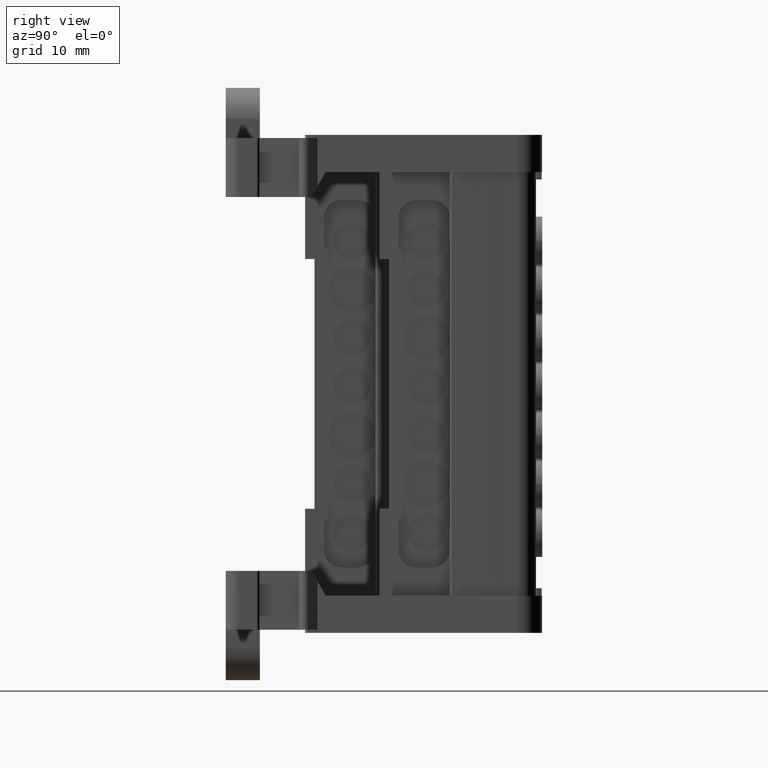
[diagram: clean part render]
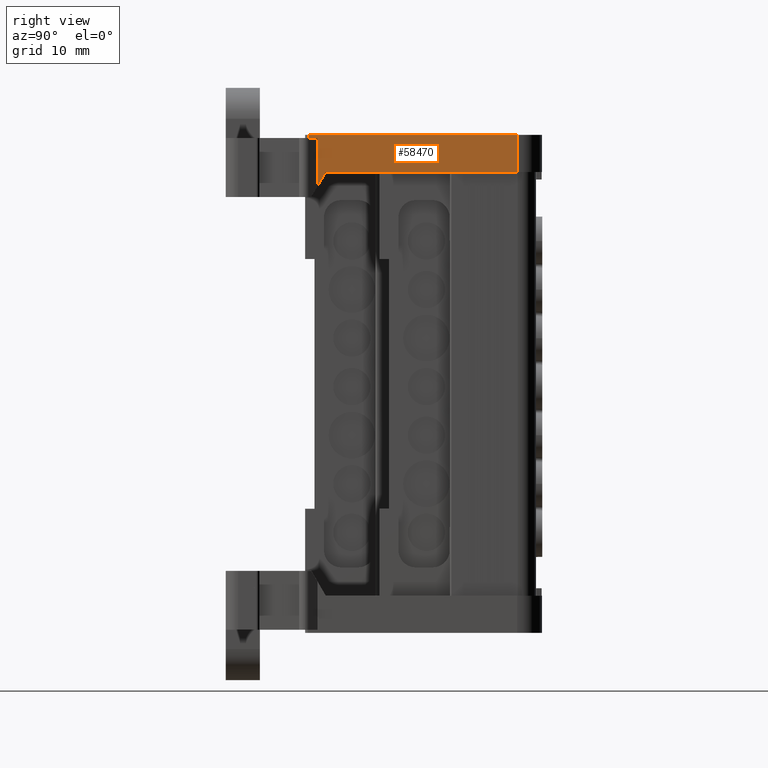
[diagram: same view with one face highlighted and labeled with its STEP entity id]
A machine part, right view. The second image highlights one B-rep face of the part: STEP entity #58470.
In plain terms, the highlighted planar face has unit normal (-1, -0, 0).
Its self-contained STEP definition (entity closure, byte-faithful):
#3266 = CARTESIAN_POINT ( 'NONE',  ( -25.88403632107860000, 12.41911145422002100, -13.92157904122753100 ) ) ;
#3270 = FACE_OUTER_BOUND ( 'NONE', #42540, .T. ) ;
#3289 = PLANE ( 'NONE',  #11391 ) ;
#3300 = DIRECTION ( 'NONE',  ( 6.938893903892216900E-018, 0.0000000000000000000, 1.000000000000000000 ) ) ;
#3308 = DIRECTION ( 'NONE',  ( -1.000000000000000000, -5.567141245485240800E-032, 6.938893903892216900E-018 ) ) ;
#7378 = VECTOR ( 'NONE', #22201, 1000.000000000000000 ) ;
#9648 = LINE ( 'NONE', #9654, #14235 ) ;
#9649 = DIRECTION ( 'NONE',  ( -6.938893903892216100E-018, 7.965850201685501300E-015, -1.000000000000000000 ) ) ;
#9654 = CARTESIAN_POINT ( 'NONE',  ( -25.88403632107865300, 45.48168290469438800, 94.51694332290939800 ) ) ;
#9711 = LINE ( 'NONE', #9729, #14216 ) ;
#9729 = CARTESIAN_POINT ( 'NONE',  ( -25.88403632107860000, 13.41374584738992900, -13.92157904122753100 ) ) ;
#9741 = DIRECTION ( 'NONE',  ( 6.938893903892216900E-018, 0.0000000000000000000, 1.000000000000000000 ) ) ;
#9833 = LINE ( 'NONE', #9886, #14301 ) ;
#9848 = LINE ( 'NONE', #9879, #14272 ) ;
#9879 = CARTESIAN_POINT ( 'NONE',  ( -25.88403632107860000, 11.42205551702720400, 37.93719772445151500 ) ) ;
#9886 = CARTESIAN_POINT ( 'NONE',  ( -25.88403632107860000, 11.92058348562464000, -13.92157904122753100 ) ) ;
#9890 = DIRECTION ( 'NONE',  ( 0.0000000000000000000, -0.4999999999999389900, -0.8660254037844739000 ) ) ;
#9892 = DIRECTION ( 'NONE',  ( 6.938893903892216900E-018, 0.0000000000000000000, 1.000000000000000000 ) ) ;
#9906 = LINE ( 'NONE', #9914, #14314 ) ;
#9914 = CARTESIAN_POINT ( 'NONE',  ( -25.88403632107860000, 14.73171736614595600, 31.97218928989230200 ) ) ;
#9964 = DIRECTION ( 'NONE',  ( 6.282516687065767900E-076, 1.000000000000000000, -3.575809622405604900E-046 ) ) ;
#10153 = CARTESIAN_POINT ( 'NONE',  ( -25.88403632107860000, -10.62764597436904000, 37.43866975585650900 ) ) ;
#10155 = DIRECTION ( 'NONE',  ( 2.513006674826307200E-075, 1.000000000000000000, -7.151619244811209800E-046 ) ) ;
#10183 = LINE ( 'NONE', #10153, #14365 ) ;
#11391 = AXIS2_PLACEMENT_3D ( 'NONE', #3266, #3308, #3300 ) ;
#11469 = VERTEX_POINT ( 'NONE', #37318 ) ;
#11528 = VERTEX_POINT ( 'NONE', #37338 ) ;
#11622 = VERTEX_POINT ( 'NONE', #37560 ) ;
#11702 = VERTEX_POINT ( 'NONE', #37552 ) ;
#11722 = VERTEX_POINT ( 'NONE', #37490 ) ;
#14216 = VECTOR ( 'NONE', #9741, 1000.000000000000000 ) ;
#14235 = VECTOR ( 'NONE', #9649, 1000.000000000000000 ) ;
#14272 = VECTOR ( 'NONE', #9964, 1000.000000000000000 ) ;
#14301 = VECTOR ( 'NONE', #9892, 1000.000000000000000 ) ;
#14314 = VECTOR ( 'NONE', #9890, 1000.000000000000200 ) ;
#14365 = VECTOR ( 'NONE', #10155, 1000.000000000000000 ) ;
#22191 = CARTESIAN_POINT ( 'NONE',  ( -25.88403632107860000, 39.47568644568635000, 31.97218928989245500 ) ) ;
#22201 = DIRECTION ( 'NONE',  ( 1.344870471071724100E-048, -1.000000000000000000, 9.690813043904511800E-032 ) ) ;
#22220 = LINE ( 'NONE', #22191, #7378 ) ;
#32971 = CARTESIAN_POINT ( 'NONE',  ( -25.88403632107861400, 45.48168290469490000, 31.97218928989242000 ) ) ;
#33043 = CARTESIAN_POINT ( 'NONE',  ( -25.88403632107860000, 14.73171736614599700, 31.97218928989235900 ) ) ;
#37318 = CARTESIAN_POINT ( 'NONE',  ( -25.88403632107860700, 13.41374584738993100, 37.43866975585650900 ) ) ;
#37338 = CARTESIAN_POINT ( 'NONE',  ( -25.88403632107860000, 11.92058348562464000, 37.43866975585650900 ) ) ;
#37490 = CARTESIAN_POINT ( 'NONE',  ( -25.88403632107860000, 11.92058348562463600, 37.93719772445151500 ) ) ;
#37552 = CARTESIAN_POINT ( 'NONE',  ( -25.88403632107860700, 13.41374584738991900, 29.68939565647775700 ) ) ;
#37560 = CARTESIAN_POINT ( 'NONE',  ( -25.88403632107862900, 45.48168290469484300, 37.93719772445148700 ) ) ;
#42540 = EDGE_LOOP ( 'NONE', ( #54800, #54771, #54783, #54792, #54849, #54837, #54804 ) ) ;
#50214 = VERTEX_POINT ( 'NONE', #32971 ) ;
#50280 = VERTEX_POINT ( 'NONE', #33043 ) ;
#53351 = EDGE_CURVE ( 'NONE', #50214, #50280, #22220, .T. ) ;
#54771 = ORIENTED_EDGE ( 'NONE', *, *, #53351, .F. ) ;
#54783 = ORIENTED_EDGE ( 'NONE', *, *, #57261, .F. ) ;
#54792 = ORIENTED_EDGE ( 'NONE', *, *, #57326, .F. ) ;
#54800 = ORIENTED_EDGE ( 'NONE', *, *, #57319, .F. ) ;
#54804 = ORIENTED_EDGE ( 'NONE', *, *, #57282, .F. ) ;
#54837 = ORIENTED_EDGE ( 'NONE', *, *, #57365, .T. ) ;
#54849 = ORIENTED_EDGE ( 'NONE', *, *, #57317, .F. ) ;
#57261 = EDGE_CURVE ( 'NONE', #11622, #50214, #9648, .T. ) ;
#57282 = EDGE_CURVE ( 'NONE', #11702, #11469, #9711, .T. ) ;
#57317 = EDGE_CURVE ( 'NONE', #11528, #11722, #9833, .T. ) ;
#57319 = EDGE_CURVE ( 'NONE', #50280, #11702, #9906, .T. ) ;
#57326 = EDGE_CURVE ( 'NONE', #11722, #11622, #9848, .T. ) ;
#57365 = EDGE_CURVE ( 'NONE', #11528, #11469, #10183, .T. ) ;
#58470 = ADVANCED_FACE ( 'NONE', ( #3270 ), #3289, .F. ) ;